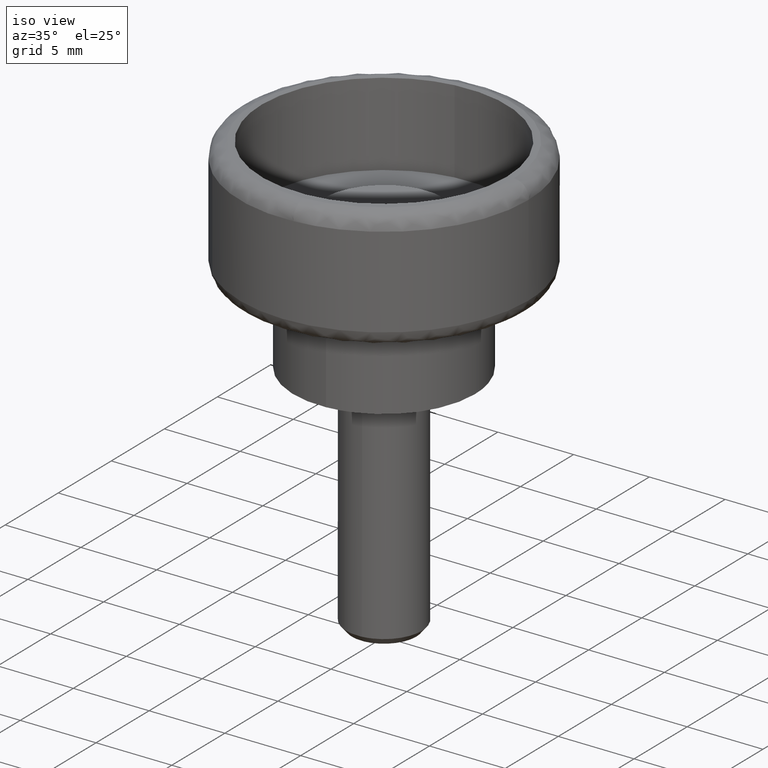
[diagram: clean part render]
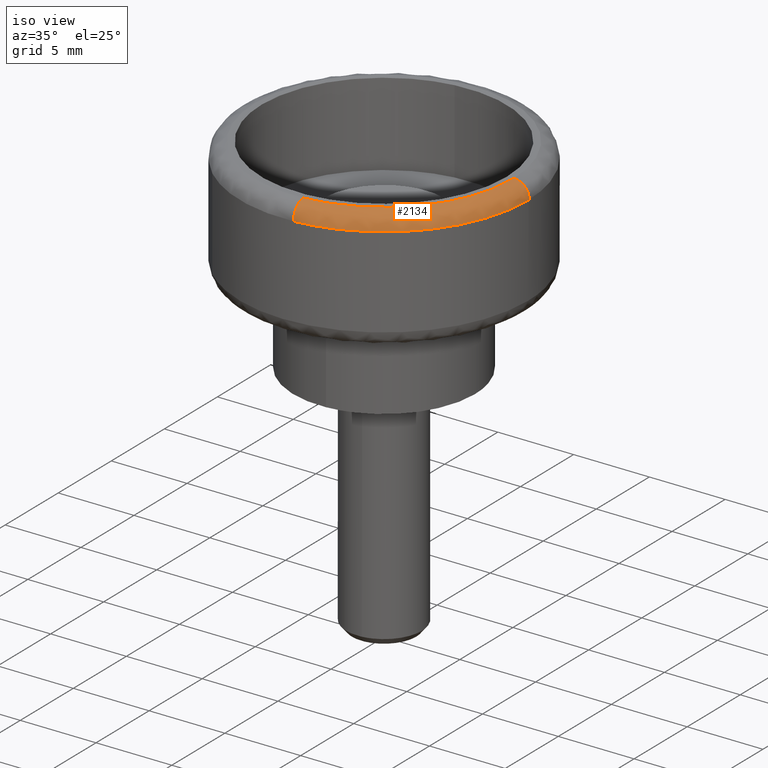
[diagram: same view with one face highlighted and labeled with its STEP entity id]
A machine part, iso view. The second image highlights one B-rep face of the part: STEP entity #2134.
In plain terms, the highlighted face is a freeform B-spline surface patch.
Its self-contained STEP definition (entity closure, byte-faithful):
#1763=CARTESIAN_POINT('',(9.499249919936249,0.119377378892148,13.000000000105681));
#1764=VERTEX_POINT('',#1763);
#1780=CARTESIAN_POINT('',(9.500000000000000,0.0,13.0));
#1781=VERTEX_POINT('',#1780);
#1782=CARTESIAN_POINT('',(9.499249919936249,0.119377378892148,13.000000000105679));
#1783=CARTESIAN_POINT('',(9.500000000000002,0.059691045923254,13.000000000000004));
#1784=CARTESIAN_POINT('',(9.500000000000000,0.0,13.0));
#1792=(BOUNDED_CURVE()B_SPLINE_CURVE(2,(#1782,#1783,#1784),.UNSPECIFIED.,.F.,.U.)B_SPLINE_CURVE_WITH_KNOTS((3,3),(0.497784295921717,0.500000000000000),.UNSPECIFIED.)CURVE()GEOMETRIC_REPRESENTATION_ITEM()RATIONAL_B_SPLINE_CURVE((0.994854295643987,0.997404141202294,1.0))REPRESENTATION_ITEM(''));
#1793=EDGE_CURVE('',#1764,#1781,#1792,.T.);
#1795=CARTESIAN_POINT('',(0.662465889971248,-9.476873901483790,13.000000000105770));
#1796=VERTEX_POINT('',#1795);
#1797=CARTESIAN_POINT('',(9.500000000000000,0.0,13.0));
#1798=CARTESIAN_POINT('',(9.500000000000000,-8.859100049024363,13.000000000000002));
#1799=CARTESIAN_POINT('',(0.662465889971248,-9.476873901483788,13.000000000105771));
#1807=(BOUNDED_CURVE()B_SPLINE_CURVE(2,(#1797,#1798,#1799),.UNSPECIFIED.,.F.,.U.)B_SPLINE_CURVE_WITH_KNOTS((3,3),(0.500000000000000,0.737833686534970),.UNSPECIFIED.)CURVE()GEOMETRIC_REPRESENTATION_ITEM()RATIONAL_B_SPLINE_CURVE((1.0,0.721360504034013,0.972879876386717))REPRESENTATION_ITEM(''));
#1808=EDGE_CURVE('',#1781,#1796,#1807,.T.);
#2016=CARTESIAN_POINT('',(0.592732638558522,-8.479308229011782,14.0));
#2017=VERTEX_POINT('',#2016);
#2018=CARTESIAN_POINT('',(0.592732638558522,-8.479308229011782,13.999999999999998));
#2019=CARTESIAN_POINT('',(0.662465889951942,-9.476873901273082,13.999999997247119));
#2020=CARTESIAN_POINT('',(0.662465889971248,-9.476873901483788,13.000000000105775));
#2028=(BOUNDED_CURVE()B_SPLINE_CURVE(2,(#2018,#2019,#2020),.UNSPECIFIED.,.F.,.U.)B_SPLINE_CURVE_WITH_KNOTS((3,3),(-1.734750788797899,-0.265249208561411),.UNSPECIFIED.)CURVE()GEOMETRIC_REPRESENTATION_ITEM()RATIONAL_B_SPLINE_CURVE((0.869031710884320,0.614498217066694,0.869031711799112))REPRESENTATION_ITEM(''));
#2029=EDGE_CURVE('',#2017,#1796,#2028,.T.);
#2048=CARTESIAN_POINT('',(8.499328876075287,0.106811339021227,14.0));
#2049=VERTEX_POINT('',#2048);
#2065=CARTESIAN_POINT('',(8.499328876075287,0.106811339021227,13.999999999999996));
#2066=CARTESIAN_POINT('',(9.499249919724909,0.119377378889187,13.999999999314031));
#2067=CARTESIAN_POINT('',(9.499249919936247,0.119377378892148,13.000000000105681));
#2075=(BOUNDED_CURVE()B_SPLINE_CURVE(2,(#2065,#2066,#2067),.UNSPECIFIED.,.F.,.U.)B_SPLINE_CURVE_WITH_KNOTS((3,3),(-1.734750790945617,-0.265249208561221),.UNSPECIFIED.)CURVE()GEOMETRIC_REPRESENTATION_ITEM()RATIONAL_B_SPLINE_CURVE((0.889029723323836,0.628638946382523,0.889029723498609))REPRESENTATION_ITEM(''));
#2076=EDGE_CURVE('',#2049,#1764,#2075,.T.);
#2083=CARTESIAN_POINT('',(8.429796802383599,0.105937527209111,13.997579333801953));
#2084=CARTESIAN_POINT('',(8.529839270618103,-7.854770080786407,13.997579333801955));
#2085=CARTESIAN_POINT('',(0.587883557964850,-8.409939941011620,13.997579333801957));
#2086=CARTESIAN_POINT('',(9.576781020486248,0.120351714723016,14.077537672319453));
#2087=CARTESIAN_POINT('',(9.690435576282885,-8.923514385149641,14.077537672319453));
#2088=CARTESIAN_POINT('',(0.667872812614150,-9.554222373158019,14.077537672319451));
#2089=CARTESIAN_POINT('',(9.496829473885930,0.119346961068576,12.930462852639844));
#2090=CARTESIAN_POINT('',(9.609535187112742,-8.849016620746681,12.930462852639838));
#2091=CARTESIAN_POINT('',(0.662297091065690,-9.474459156930847,12.930462852639849));
#2099=(BOUNDED_SURFACE()B_SPLINE_SURFACE(2,2,((#2083,#2086,#2089),(#2084,#2087,#2090),(#2085,#2088,#2091)),.UNSPECIFIED.,.F.,.F.,.U.)B_SPLINE_SURFACE_WITH_KNOTS((3,3),(3,3),(0.0,15.102514647123851),(0.0,1.822374508239524),.UNSPECIFIED.)GEOMETRIC_REPRESENTATION_ITEM()RATIONAL_B_SPLINE_SURFACE(((0.916342290394977,0.601326466525285,0.916342116141991),(0.658687465145048,0.432246999960507,0.658687339888079),(0.895729904374983,0.587800109200103,0.895729734041678)))REPRESENTATION_ITEM('')SURFACE());
#2100=ORIENTED_EDGE('',*,*,#1808,.F.);
#2101=ORIENTED_EDGE('',*,*,#1793,.F.);
#2102=ORIENTED_EDGE('',*,*,#2076,.F.);
#2103=CARTESIAN_POINT('',(8.500000000000000,0.0,14.0));
#2104=VERTEX_POINT('',#2103);
#2105=CARTESIAN_POINT('',(8.499328876075287,0.106811339021227,13.999999999999998));
#2106=CARTESIAN_POINT('',(8.499999999999998,0.053407777939487,14.000000000000004));
#2107=CARTESIAN_POINT('',(8.500000000000000,0.0,14.0));
#2115=(BOUNDED_CURVE()B_SPLINE_CURVE(2,(#2105,#2106,#2107),.UNSPECIFIED.,.F.,.U.)B_SPLINE_CURVE_WITH_KNOTS((3,3),(0.497784295921380,0.500000000000000),.UNSPECIFIED.)CURVE()GEOMETRIC_REPRESENTATION_ITEM()RATIONAL_B_SPLINE_CURVE((0.994854295643210,0.997404141201899,1.0))REPRESENTATION_ITEM(''));
#2116=EDGE_CURVE('',#2049,#2104,#2115,.T.);
#2117=ORIENTED_EDGE('',*,*,#2116,.T.);
#2118=CARTESIAN_POINT('',(8.500000000000000,0.0,14.0));
#2119=CARTESIAN_POINT('',(8.500000000000000,-7.926563201632662,14.000000000000002));
#2120=CARTESIAN_POINT('',(0.592732638558522,-8.479308229011782,14.000000000000005));
#2128=(BOUNDED_CURVE()B_SPLINE_CURVE(2,(#2118,#2119,#2120),.UNSPECIFIED.,.F.,.U.)B_SPLINE_CURVE_WITH_KNOTS((3,3),(0.500000000000000,0.737833686532243),.UNSPECIFIED.)CURVE()GEOMETRIC_REPRESENTATION_ITEM()RATIONAL_B_SPLINE_CURVE((1.0,0.721360504037207,0.972879876380950))REPRESENTATION_ITEM(''));
#2129=EDGE_CURVE('',#2104,#2017,#2128,.T.);
#2130=ORIENTED_EDGE('',*,*,#2129,.T.);
#2131=ORIENTED_EDGE('',*,*,#2029,.T.);
#2132=EDGE_LOOP('',(#2100,#2101,#2102,#2117,#2130,#2131));
#2133=FACE_OUTER_BOUND('',#2132,.T.);
#2134=ADVANCED_FACE('',(#2133),#2099,.T.);